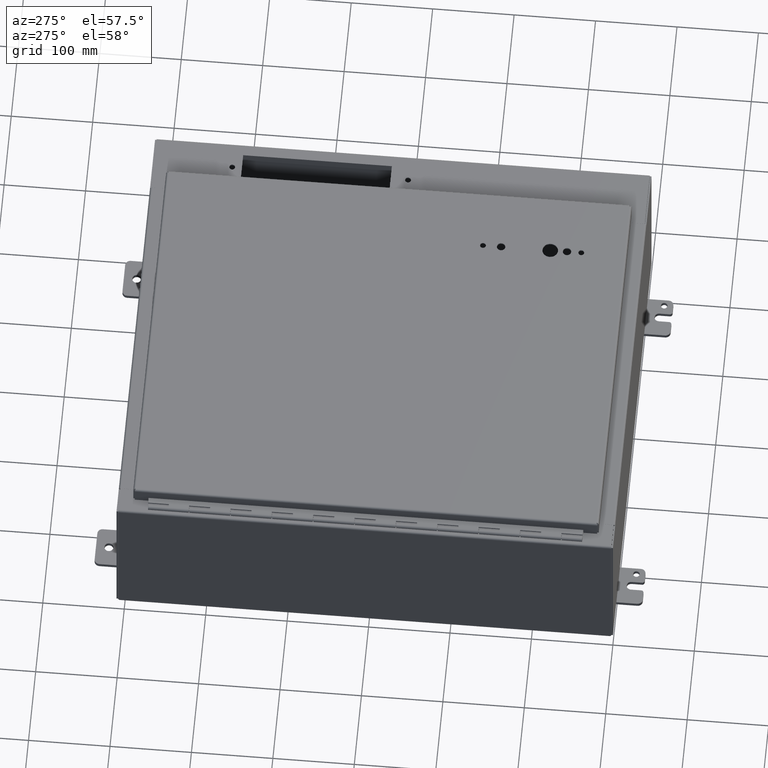
[diagram: clean part render]
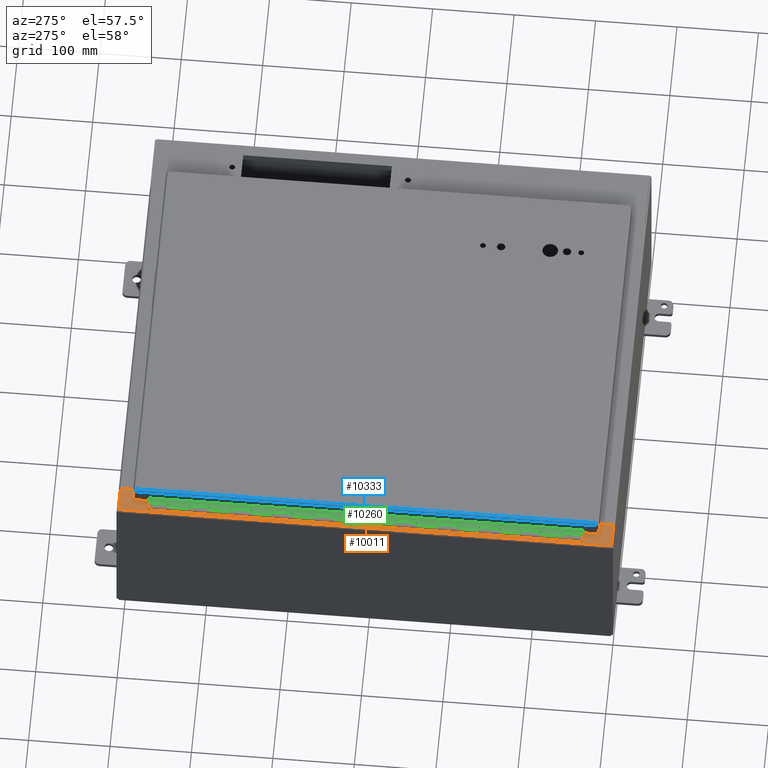
[diagram: same view with three faces highlighted in distinct colors, each labeled with its STEP entity id]
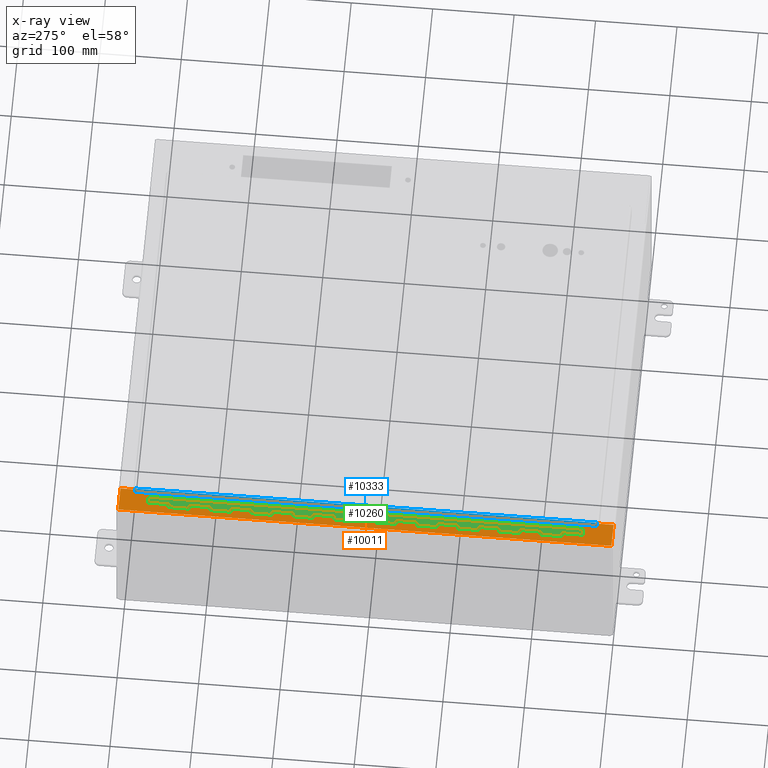
[diagram: x-ray of the same camera — body ghosted, the three highlighted faces saturated]
A machine part, auxiliary view with three faces highlighted in distinct colors.
The next image is the same camera in x-ray (body ghosted, the three faces saturated) — at least one of them is partly hidden behind the body in this view.
Their STEP definitions:

[orange] entity #10011 — the highlighted planar face has unit normal (0, -0, 1).
#246=FACE_BOUND($,#1572,.T.);
#247=FACE_BOUND($,#1573,.T.);
#339=CIRCLE($,#10459,0.0625);
#341=CIRCLE($,#10463,0.0625);
#1572=EDGE_LOOP($,(#6864,#6865,#6866,#6867));
#1573=EDGE_LOOP($,(#6868,#6869,#6870,#6871,#6872,#6873,#6874,#6875,#6876,
#6877,#6878,#6879));
#2074=LINE($,#14206,#3039);
#2078=LINE($,#14218,#3043);
#2224=LINE($,#14740,#3189);
#2235=LINE($,#14770,#3200);
#2275=LINE($,#14853,#3240);
#2277=LINE($,#14859,#3242);
#2281=LINE($,#14866,#3246);
#2283=LINE($,#14870,#3248);
#2286=LINE($,#14876,#3251);
#2289=LINE($,#14882,#3254);
#2290=LINE($,#14884,#3255);
#2291=LINE($,#14886,#3256);
#2292=LINE($,#14888,#3257);
#2293=LINE($,#14889,#3258);
#3039=VECTOR($,#11387,0.0629999999999999);
#3043=VECTOR($,#11399,0.0630000000000001);
#3189=VECTOR($,#11917,0.000199999999999981);
#3200=VECTOR($,#11942,0.000199999999999981);
#3240=VECTOR($,#12032,21.374);
#3242=VECTOR($,#12038,0.105450000000007);
#3246=VECTOR($,#12044,0.000199999999999981);
#3248=VECTOR($,#12048,0.00020000000000138);
#3251=VECTOR($,#12053,0.105450000000007);
#3254=VECTOR($,#12058,1.2338);
#3255=VECTOR($,#12059,1.20725000000001);
#3256=VECTOR($,#12060,23.842);
#3257=VECTOR($,#12061,1.20725000000001);
#3258=VECTOR($,#12062,1.2338);
#4004=VERTEX_POINT($,#14203);
#4005=VERTEX_POINT($,#14205);
#4007=VERTEX_POINT($,#14211);
#4009=VERTEX_POINT($,#14217);
#4198=VERTEX_POINT($,#14737);
#4199=VERTEX_POINT($,#14739);
#4210=VERTEX_POINT($,#14767);
#4211=VERTEX_POINT($,#14769);
#4230=VERTEX_POINT($,#14857);
#4231=VERTEX_POINT($,#14858);
#4234=VERTEX_POINT($,#14869);
#4236=VERTEX_POINT($,#14875);
#4238=VERTEX_POINT($,#14881);
#4239=VERTEX_POINT($,#14883);
#4240=VERTEX_POINT($,#14885);
#4241=VERTEX_POINT($,#14887);
#4942=EDGE_CURVE($,#4005,#4004,#2074,.T.);
#4945=EDGE_CURVE($,#4007,#4005,#339,.T.);
#4948=EDGE_CURVE($,#4009,#4007,#2078,.T.);
#4951=EDGE_CURVE($,#4004,#4009,#341,.T.);
#5182=EDGE_CURVE($,#4199,#4198,#2224,.T.);
#5197=EDGE_CURVE($,#4211,#4210,#2235,.T.);
#5239=EDGE_CURVE($,#4198,#4211,#2275,.T.);
#5241=EDGE_CURVE($,#4230,#4231,#2277,.T.);
#5245=EDGE_CURVE($,#4231,#4199,#2281,.T.);
#5247=EDGE_CURVE($,#4210,#4234,#2283,.T.);
#5250=EDGE_CURVE($,#4234,#4236,#2286,.T.);
#5253=EDGE_CURVE($,#4238,#4236,#2289,.T.);
#5254=EDGE_CURVE($,#4238,#4239,#2290,.T.);
#5255=EDGE_CURVE($,#4240,#4239,#2291,.T.);
#5256=EDGE_CURVE($,#4240,#4241,#2292,.T.);
#5257=EDGE_CURVE($,#4230,#4241,#2293,.T.);
#6864=ORIENTED_EDGE($,*,*,#4942,.T.);
#6865=ORIENTED_EDGE($,*,*,#4951,.T.);
#6866=ORIENTED_EDGE($,*,*,#4948,.T.);
#6867=ORIENTED_EDGE($,*,*,#4945,.T.);
#6868=ORIENTED_EDGE($,*,*,#5241,.T.);
#6869=ORIENTED_EDGE($,*,*,#5245,.T.);
#6870=ORIENTED_EDGE($,*,*,#5182,.T.);
#6871=ORIENTED_EDGE($,*,*,#5239,.T.);
#6872=ORIENTED_EDGE($,*,*,#5197,.T.);
#6873=ORIENTED_EDGE($,*,*,#5247,.T.);
#6874=ORIENTED_EDGE($,*,*,#5250,.T.);
#6875=ORIENTED_EDGE($,*,*,#5253,.F.);
#6876=ORIENTED_EDGE($,*,*,#5254,.T.);
#6877=ORIENTED_EDGE($,*,*,#5255,.F.);
#6878=ORIENTED_EDGE($,*,*,#5256,.T.);
#6879=ORIENTED_EDGE($,*,*,#5257,.F.);
#9168=PLANE($,#10684);
#10011=ADVANCED_FACE($,(#246,#247),#9168,.T.);
#10459=AXIS2_PLACEMENT_3D($,#14212,#11393,#11394);
#10463=AXIS2_PLACEMENT_3D($,#14222,#11405,#11406);
#10684=AXIS2_PLACEMENT_3D($,#14880,#12056,#12057);
#11387=DIRECTION($,(-1.,-3.02470474793707E-015,-1.0646774268193E-030));
#11393=DIRECTION('center_axis',(0.,3.51993835942313E-016,-1.));
#11394=DIRECTION('ref_axis',(3.01360390529615E-015,-1.,0.));
#11399=DIRECTION($,(1.,3.02470474793707E-015,1.0646774268193E-030));
#11405=DIRECTION('center_axis',(0.,3.51993835942313E-016,-1.));
#11406=DIRECTION('ref_axis',(-3.01360390529615E-015,1.,0.));
#11917=DIRECTION($,(1.,0.,0.));
#11942=DIRECTION($,(-1.,0.,0.));
#12032=DIRECTION($,(-3.10838136080822E-016,1.,3.51993835942313E-016));
#12038=DIRECTION($,(-1.,0.,0.));
#12044=DIRECTION($,(0.,1.,3.51993835942313E-016));
#12048=DIRECTION($,(0.,1.,3.51993835942313E-016));
#12053=DIRECTION($,(1.,0.,0.));
#12056=DIRECTION('center_axis',(0.,-3.51993835942313E-016,1.));
#12057=DIRECTION('ref_axis',(1.,0.,0.));
#12058=DIRECTION($,(3.06161305220657E-016,-1.,-3.51993835942313E-016));
#12059=DIRECTION($,(-1.,0.,0.));
#12060=DIRECTION($,(3.51993835942313E-016,1.,3.06161699786838E-016));
#12061=DIRECTION($,(1.,0.,0.));
#12062=DIRECTION($,(3.06161305220657E-016,-1.,-3.51993835942313E-016));
#14203=CARTESIAN_POINT('',(0.868499999999997,2.4375,8.));
#14205=CARTESIAN_POINT('',(0.931499999999997,2.4375,8.));
#14206=CARTESIAN_POINT($,(0.471250000000026,2.4375,8.));
#14211=CARTESIAN_POINT('',(0.931499999999997,2.5625,8.));
#14212=CARTESIAN_POINT('Origin',(0.931499999999997,2.5,8.00000000000001));
#14217=CARTESIAN_POINT('',(0.868499999999997,2.5625,8.));
#14218=CARTESIAN_POINT($,(0.502750000000026,2.5625,8.));
#14222=CARTESIAN_POINT('Origin',(0.868499999999997,2.5,8.00000000000001));
#14737=CARTESIAN_POINT('',(1.20724999999999,1.313,8.));
#14739=CARTESIAN_POINT('',(1.20704999999999,1.313,8.));
#14740=CARTESIAN_POINT($,(0.64052499999999,1.313,8.));
#14767=CARTESIAN_POINT('',(1.20704999999998,22.687,8.00000000000001));
#14769=CARTESIAN_POINT('',(1.20724999999998,22.687,8.00000000000001));
#14770=CARTESIAN_POINT($,(0.69324999999999,22.687,8.00000000000001));
#14853=CARTESIAN_POINT($,(1.20724999999998,23.304,8.00000000000001));
#14857=CARTESIAN_POINT('',(1.3125,1.3128,8.));
#14858=CARTESIAN_POINT('',(1.20704999999999,1.3128,8.));
#14859=CARTESIAN_POINT($,(0.693249999999994,1.3128,8.));
#14866=CARTESIAN_POINT($,(1.20704999999999,12.6169,8.));
#14869=CARTESIAN_POINT('',(1.20704999999998,22.6872,8.00000000000001));
#14870=CARTESIAN_POINT($,(1.20704999999998,23.304,8.00000000000001));
#14875=CARTESIAN_POINT('',(1.31249999999999,22.6872,8.00000000000001));
#14876=CARTESIAN_POINT($,(0.640524999999987,22.6872,8.00000000000001));
#14880=CARTESIAN_POINT('Origin',(0.0739999999999904,23.921,8.00000000000001));
#14881=CARTESIAN_POINT('',(1.31249999999999,23.921,8.00000000000001));
#14882=CARTESIAN_POINT($,(1.31249999999999,23.921,8.00000000000001));
#14883=CARTESIAN_POINT('',(0.105249999999973,23.921,8.00000000000001));
#14884=CARTESIAN_POINT($,(1.31249999999999,23.921,8.00000000000001));
#14885=CARTESIAN_POINT('',(0.105249999999965,0.0790000000000052,8.00000000000001));
#14886=CARTESIAN_POINT($,(0.105249999999973,23.921,8.00000000000001));
#14887=CARTESIAN_POINT('',(1.3125,0.0789999999999997,8.));
#14888=CARTESIAN_POINT($,(1.3125,0.0789999999999997,8.));
#14889=CARTESIAN_POINT($,(1.31249999999999,23.921,8.00000000000001));

[blue] entity #10333 — the highlighted cylindrical surface (edge-blend (fillet) strip) has radius 2.6733 mm, axis along (0, -1, 0).
#204=B_SPLINE_CURVE_WITH_KNOTS($,3,(#17119,#17120,#17121,#17122,#17123,
#17124,#17125),.UNSPECIFIED.,.F.,.F.,(4,3,4),(0.,0.897597901025652,1.57079632679489),
 .UNSPECIFIED.);
#205=B_SPLINE_CURVE_WITH_KNOTS($,3,(#17127,#17128,#17129,#17130,#17131,
#17132,#17133),.UNSPECIFIED.,.F.,.F.,(4,3,4),(0.,0.673198425769234,1.57079632679487),
 .UNSPECIFIED.);
#847=CYLINDRICAL_SURFACE($,#11209,0.10525);
#1314=FACE_OUTER_BOUND($,#1941,.T.);
#1941=EDGE_LOOP($,(#8636,#8637,#8638,#8639));
#2914=LINE($,#17117,#3879);
#2915=LINE($,#17126,#3880);
#3879=VECTOR($,#13733,22.3505857864376);
#3880=VECTOR($,#13734,22.2895);
#4794=VERTEX_POINT($,#17018);
#4802=VERTEX_POINT($,#17115);
#4803=VERTEX_POINT($,#17116);
#4804=VERTEX_POINT($,#17118);
#6111=EDGE_CURVE($,#4802,#4803,#2914,.T.);
#6112=EDGE_CURVE($,#4804,#4802,#204,.T.);
#6113=EDGE_CURVE($,#4794,#4804,#2915,.T.);
#6114=EDGE_CURVE($,#4803,#4794,#205,.T.);
#8636=ORIENTED_EDGE($,*,*,#6111,.F.);
#8637=ORIENTED_EDGE($,*,*,#6112,.F.);
#8638=ORIENTED_EDGE($,*,*,#6113,.F.);
#8639=ORIENTED_EDGE($,*,*,#6114,.F.);
#10333=ADVANCED_FACE($,(#1314),#847,.T.);
#11209=AXIS2_PLACEMENT_3D($,#17114,#13731,#13732);
#13731=DIRECTION('center_axis',(3.06161699786838E-016,-1.,0.));
#13732=DIRECTION('ref_axis',(-1.,0.,6.28130370039669E-015));
#13733=DIRECTION($,(-3.07228453752467E-016,1.,6.53198414742357E-035));
#13734=DIRECTION($,(3.05915008958747E-016,-1.,0.));
#17018=CARTESIAN_POINT('',(0.105249999999993,22.39475,0.074));
#17114=CARTESIAN_POINT('Origin',(0.10525,0.0747071067811843,-0.03125));
#17115=CARTESIAN_POINT('',(-3.27821759239712E-017,0.0747071067811846,-0.0312499999999997));
#17116=CARTESIAN_POINT('',(-6.8951843360086E-015,22.4252928932188,-0.0312499999999987));
#17117=CARTESIAN_POINT($,(-3.46398325596629E-015,11.25,-0.03125));
#17118=CARTESIAN_POINT('',(0.10525,0.10525,0.074));
#17119=CARTESIAN_POINT('Ctrl Pts',(0.10525,0.10525,0.074));
#17120=CARTESIAN_POINT('Ctrl Pts',(0.0737592736390166,0.0994323060535587,
0.074));
#17121=CARTESIAN_POINT('Ctrl Pts',(0.0426082590819405,0.0936146121071177,
0.0588938539011335));
#17122=CARTESIAN_POINT('Ctrl Pts',(0.0229737432385787,0.0877969181606767,
0.0343965424526412));
#17123=CARTESIAN_POINT('Ctrl Pts',(0.00824785635605726,0.0834336477008459,
0.0160235588662719));
#17124=CARTESIAN_POINT('Ctrl Pts',(1.11781223800762E-016,0.079070377241015,
-0.00763195522926186));
#17125=CARTESIAN_POINT('Ctrl Pts',(-4.37095678986278E-017,0.0747071067811843,
-0.0312499999999993));
#17126=CARTESIAN_POINT($,(0.105249999999994,16.822375,0.074));
#17127=CARTESIAN_POINT('Ctrl Pts',(-6.88425694403394E-015,22.4252928932188,
-0.0312499999999974));
#17128=CARTESIAN_POINT('Ctrl Pts',(-6.30510516937712E-015,22.420929622759,
-0.00763195522926015));
#17129=CARTESIAN_POINT('Ctrl Pts',(0.00825760593300805,22.4165663522991,
0.0160154332638621));
#17130=CARTESIAN_POINT('Ctrl Pts',(0.0229848856122377,22.4122030818393,
0.0343872560498866));
#17131=CARTESIAN_POINT('Ctrl Pts',(0.0426212585178772,22.4063853878929,
0.0588830197645857));
#17132=CARTESIAN_POINT('Ctrl Pts',(0.0737592736390103,22.4005676939464,
0.0739999999999999));
#17133=CARTESIAN_POINT('Ctrl Pts',(0.105249999999993,22.39475,0.074));

[green] entity #10260 — the highlighted planar face has unit normal (0.0872, 0, 0.9962).
#1242=FACE_OUTER_BOUND($,#1861,.T.);
#1861=EDGE_LOOP($,(#8267,#8268,#8269,#8270,#8271,#8272,#8273,#8274,#8275,
#8276,#8277,#8278,#8279,#8280,#8281,#8282,#8283,#8284,#8285,#8286,#8287,
#8288,#8289,#8290,#8291,#8292,#8293,#8294,#8295,#8296,#8297,#8298,#8299,
#8300,#8301,#8302,#8303,#8304,#8305,#8306,#8307,#8308,#8309,#8310));
#2704=LINE($,#16429,#3669);
#2710=LINE($,#16442,#3675);
#2711=LINE($,#16448,#3676);
#2716=LINE($,#16460,#3681);
#2720=LINE($,#16471,#3685);
#2721=LINE($,#16477,#3686);
#2726=LINE($,#16489,#3691);
#2730=LINE($,#16500,#3695);
#2731=LINE($,#16506,#3696);
#2736=LINE($,#16518,#3701);
#2740=LINE($,#16529,#3705);
#2741=LINE($,#16535,#3706);
#2746=LINE($,#16547,#3711);
#2750=LINE($,#16558,#3715);
#2751=LINE($,#16564,#3716);
#2756=LINE($,#16576,#3721);
#2760=LINE($,#16587,#3725);
#2761=LINE($,#16593,#3726);
#2766=LINE($,#16605,#3731);
#2770=LINE($,#16616,#3735);
#2771=LINE($,#16622,#3736);
#2776=LINE($,#16634,#3741);
#2780=LINE($,#16645,#3745);
#2781=LINE($,#16651,#3746);
#2786=LINE($,#16663,#3751);
#2790=LINE($,#16674,#3755);
#2791=LINE($,#16680,#3756);
#2796=LINE($,#16692,#3761);
#2800=LINE($,#16703,#3765);
#2801=LINE($,#16705,#3766);
#2802=LINE($,#16706,#3767);
#2803=LINE($,#16707,#3768);
#2804=LINE($,#16708,#3769);
#2805=LINE($,#16709,#3770);
#2806=LINE($,#16710,#3771);
#2807=LINE($,#16711,#3772);
#2808=LINE($,#16712,#3773);
#2809=LINE($,#16713,#3774);
#2810=LINE($,#16715,#3775);
#2811=LINE($,#16717,#3776);
#2812=LINE($,#16719,#3777);
#2813=LINE($,#16721,#3778);
#2814=LINE($,#16723,#3779);
#2815=LINE($,#16724,#3780);
#3669=VECTOR($,#13205,0.18);
#3675=VECTOR($,#13215,1.);
#3676=VECTOR($,#13220,0.18);
#3681=VECTOR($,#13229,1.01999999999999);
#3685=VECTOR($,#13239,0.18);
#3686=VECTOR($,#13244,0.18);
#3691=VECTOR($,#13253,1.01999999999999);
#3695=VECTOR($,#13263,0.18);
#3696=VECTOR($,#13268,0.18);
#3701=VECTOR($,#13277,1.01999999999999);
#3705=VECTOR($,#13287,0.18);
#3706=VECTOR($,#13292,0.18);
#3711=VECTOR($,#13301,1.01999999999999);
#3715=VECTOR($,#13311,0.18);
#3716=VECTOR($,#13316,0.18);
#3721=VECTOR($,#13325,1.01999999999999);
#3725=VECTOR($,#13335,0.18);
#3726=VECTOR($,#13340,0.18);
#3731=VECTOR($,#13349,1.01999999999999);
#3735=VECTOR($,#13359,0.18);
#3736=VECTOR($,#13364,0.18);
#3741=VECTOR($,#13373,1.01999999999999);
#3745=VECTOR($,#13383,0.18);
#3746=VECTOR($,#13388,0.18);
#3751=VECTOR($,#13397,1.01999999999999);
#3755=VECTOR($,#13407,0.18);
#3756=VECTOR($,#13412,0.18);
#3761=VECTOR($,#13421,1.01999999999999);
#3765=VECTOR($,#13431,0.18);
#3766=VECTOR($,#13434,0.979999999999999);
#3767=VECTOR($,#13435,0.979999999999998);
#3768=VECTOR($,#13436,0.979999999999999);
#3769=VECTOR($,#13437,0.980000000000001);
#3770=VECTOR($,#13438,0.979999999999999);
#3771=VECTOR($,#13439,0.979999999999999);
#3772=VECTOR($,#13440,0.980000000000001);
#3773=VECTOR($,#13441,0.979999999999999);
#3774=VECTOR($,#13442,0.979999999999996);
#3775=VECTOR($,#13443,0.980000000000001);
#3776=VECTOR($,#13444,0.18);
#3777=VECTOR($,#13445,1.01999999999999);
#3778=VECTOR($,#13446,0.331005076730884);
#3779=VECTOR($,#13447,21.);
#3780=VECTOR($,#13448,0.331005076730884);
#4618=VERTEX_POINT($,#16425);
#4620=VERTEX_POINT($,#16428);
#4625=VERTEX_POINT($,#16439);
#4626=VERTEX_POINT($,#16444);
#4628=VERTEX_POINT($,#16447);
#4633=VERTEX_POINT($,#16459);
#4635=VERTEX_POINT($,#16464);
#4638=VERTEX_POINT($,#16473);
#4640=VERTEX_POINT($,#16476);
#4645=VERTEX_POINT($,#16488);
#4647=VERTEX_POINT($,#16493);
#4650=VERTEX_POINT($,#16502);
#4652=VERTEX_POINT($,#16505);
#4657=VERTEX_POINT($,#16517);
#4659=VERTEX_POINT($,#16522);
#4662=VERTEX_POINT($,#16531);
#4664=VERTEX_POINT($,#16534);
#4669=VERTEX_POINT($,#16546);
#4671=VERTEX_POINT($,#16551);
#4674=VERTEX_POINT($,#16560);
#4676=VERTEX_POINT($,#16563);
#4681=VERTEX_POINT($,#16575);
#4683=VERTEX_POINT($,#16580);
#4686=VERTEX_POINT($,#16589);
#4688=VERTEX_POINT($,#16592);
#4693=VERTEX_POINT($,#16604);
#4695=VERTEX_POINT($,#16609);
#4698=VERTEX_POINT($,#16618);
#4700=VERTEX_POINT($,#16621);
#4705=VERTEX_POINT($,#16633);
#4707=VERTEX_POINT($,#16638);
#4710=VERTEX_POINT($,#16647);
#4712=VERTEX_POINT($,#16650);
#4717=VERTEX_POINT($,#16662);
#4719=VERTEX_POINT($,#16667);
#4722=VERTEX_POINT($,#16676);
#4724=VERTEX_POINT($,#16679);
#4729=VERTEX_POINT($,#16691);
#4731=VERTEX_POINT($,#16696);
#4734=VERTEX_POINT($,#16714);
#4735=VERTEX_POINT($,#16716);
#4736=VERTEX_POINT($,#16718);
#4737=VERTEX_POINT($,#16720);
#4738=VERTEX_POINT($,#16722);
#5838=EDGE_CURVE($,#4620,#4618,#2704,.T.);
#5845=EDGE_CURVE($,#4625,#4620,#2710,.T.);
#5847=EDGE_CURVE($,#4628,#4626,#2711,.T.);
#5853=EDGE_CURVE($,#4633,#4628,#2716,.T.);
#5859=EDGE_CURVE($,#4635,#4633,#2720,.T.);
#5861=EDGE_CURVE($,#4640,#4638,#2721,.T.);
#5867=EDGE_CURVE($,#4645,#4640,#2726,.T.);
#5873=EDGE_CURVE($,#4647,#4645,#2730,.T.);
#5875=EDGE_CURVE($,#4652,#4650,#2731,.T.);
#5881=EDGE_CURVE($,#4657,#4652,#2736,.T.);
#5887=EDGE_CURVE($,#4659,#4657,#2740,.T.);
#5889=EDGE_CURVE($,#4664,#4662,#2741,.T.);
#5895=EDGE_CURVE($,#4669,#4664,#2746,.T.);
#5901=EDGE_CURVE($,#4671,#4669,#2750,.T.);
#5903=EDGE_CURVE($,#4676,#4674,#2751,.T.);
#5909=EDGE_CURVE($,#4681,#4676,#2756,.T.);
#5915=EDGE_CURVE($,#4683,#4681,#2760,.T.);
#5917=EDGE_CURVE($,#4688,#4686,#2761,.T.);
#5923=EDGE_CURVE($,#4693,#4688,#2766,.T.);
#5929=EDGE_CURVE($,#4695,#4693,#2770,.T.);
#5931=EDGE_CURVE($,#4700,#4698,#2771,.T.);
#5937=EDGE_CURVE($,#4705,#4700,#2776,.T.);
#5943=EDGE_CURVE($,#4707,#4705,#2780,.T.);
#5945=EDGE_CURVE($,#4712,#4710,#2781,.T.);
#5951=EDGE_CURVE($,#4717,#4712,#2786,.T.);
#5957=EDGE_CURVE($,#4719,#4717,#2790,.T.);
#5959=EDGE_CURVE($,#4724,#4722,#2791,.T.);
#5965=EDGE_CURVE($,#4729,#4724,#2796,.T.);
#5971=EDGE_CURVE($,#4731,#4729,#2800,.T.);
#5972=EDGE_CURVE($,#4618,#4635,#2801,.T.);
#5973=EDGE_CURVE($,#4626,#4647,#2802,.T.);
#5974=EDGE_CURVE($,#4638,#4659,#2803,.T.);
#5975=EDGE_CURVE($,#4650,#4671,#2804,.T.);
#5976=EDGE_CURVE($,#4662,#4683,#2805,.T.);
#5977=EDGE_CURVE($,#4674,#4695,#2806,.T.);
#5978=EDGE_CURVE($,#4686,#4707,#2807,.T.);
#5979=EDGE_CURVE($,#4698,#4719,#2808,.T.);
#5980=EDGE_CURVE($,#4710,#4731,#2809,.T.);
#5981=EDGE_CURVE($,#4722,#4734,#2810,.T.);
#5982=EDGE_CURVE($,#4734,#4735,#2811,.T.);
#5983=EDGE_CURVE($,#4735,#4736,#2812,.T.);
#5984=EDGE_CURVE($,#4736,#4737,#2813,.T.);
#5985=EDGE_CURVE($,#4738,#4737,#2814,.T.);
#5986=EDGE_CURVE($,#4738,#4625,#2815,.T.);
#8267=ORIENTED_EDGE($,*,*,#5845,.T.);
#8268=ORIENTED_EDGE($,*,*,#5838,.T.);
#8269=ORIENTED_EDGE($,*,*,#5972,.T.);
#8270=ORIENTED_EDGE($,*,*,#5859,.T.);
#8271=ORIENTED_EDGE($,*,*,#5853,.T.);
#8272=ORIENTED_EDGE($,*,*,#5847,.T.);
#8273=ORIENTED_EDGE($,*,*,#5973,.T.);
#8274=ORIENTED_EDGE($,*,*,#5873,.T.);
#8275=ORIENTED_EDGE($,*,*,#5867,.T.);
#8276=ORIENTED_EDGE($,*,*,#5861,.T.);
#8277=ORIENTED_EDGE($,*,*,#5974,.T.);
#8278=ORIENTED_EDGE($,*,*,#5887,.T.);
#8279=ORIENTED_EDGE($,*,*,#5881,.T.);
#8280=ORIENTED_EDGE($,*,*,#5875,.T.);
#8281=ORIENTED_EDGE($,*,*,#5975,.T.);
#8282=ORIENTED_EDGE($,*,*,#5901,.T.);
#8283=ORIENTED_EDGE($,*,*,#5895,.T.);
#8284=ORIENTED_EDGE($,*,*,#5889,.T.);
#8285=ORIENTED_EDGE($,*,*,#5976,.T.);
#8286=ORIENTED_EDGE($,*,*,#5915,.T.);
#8287=ORIENTED_EDGE($,*,*,#5909,.T.);
#8288=ORIENTED_EDGE($,*,*,#5903,.T.);
#8289=ORIENTED_EDGE($,*,*,#5977,.T.);
#8290=ORIENTED_EDGE($,*,*,#5929,.T.);
#8291=ORIENTED_EDGE($,*,*,#5923,.T.);
#8292=ORIENTED_EDGE($,*,*,#5917,.T.);
#8293=ORIENTED_EDGE($,*,*,#5978,.T.);
#8294=ORIENTED_EDGE($,*,*,#5943,.T.);
#8295=ORIENTED_EDGE($,*,*,#5937,.T.);
#8296=ORIENTED_EDGE($,*,*,#5931,.T.);
#8297=ORIENTED_EDGE($,*,*,#5979,.T.);
#8298=ORIENTED_EDGE($,*,*,#5957,.T.);
#8299=ORIENTED_EDGE($,*,*,#5951,.T.);
#8300=ORIENTED_EDGE($,*,*,#5945,.T.);
#8301=ORIENTED_EDGE($,*,*,#5980,.T.);
#8302=ORIENTED_EDGE($,*,*,#5971,.T.);
#8303=ORIENTED_EDGE($,*,*,#5965,.T.);
#8304=ORIENTED_EDGE($,*,*,#5959,.T.);
#8305=ORIENTED_EDGE($,*,*,#5981,.T.);
#8306=ORIENTED_EDGE($,*,*,#5982,.T.);
#8307=ORIENTED_EDGE($,*,*,#5983,.T.);
#8308=ORIENTED_EDGE($,*,*,#5984,.T.);
#8309=ORIENTED_EDGE($,*,*,#5985,.F.);
#8310=ORIENTED_EDGE($,*,*,#5986,.T.);
#9330=PLANE($,#11116);
#10260=ADVANCED_FACE($,(#1242),#9330,.T.);
#11116=AXIS2_PLACEMENT_3D($,#16704,#13432,#13433);
#13205=DIRECTION($,(1.,1.60772500402571E-016,-2.81632773301609E-030));
#13215=DIRECTION($,(0.,0.,1.));
#13220=DIRECTION($,(1.,1.60772500402571E-016,-2.81632773301609E-030));
#13229=DIRECTION($,(0.,0.,1.));
#13239=DIRECTION($,(-1.,-1.60772500402571E-016,1.68979663980966E-030));
#13244=DIRECTION($,(1.,1.60772500402571E-016,-2.81632773301609E-030));
#13253=DIRECTION($,(0.,0.,1.));
#13263=DIRECTION($,(-1.,-1.60772500402571E-016,1.68979663980966E-030));
#13268=DIRECTION($,(1.,1.60772500402571E-016,-2.81632773301609E-030));
#13277=DIRECTION($,(0.,0.,1.));
#13287=DIRECTION($,(-1.,-1.60772500402571E-016,1.68979663980966E-030));
#13292=DIRECTION($,(1.,1.60772500402571E-016,-2.81632773301609E-030));
#13301=DIRECTION($,(0.,0.,1.));
#13311=DIRECTION($,(-1.,-1.60772500402571E-016,1.68979663980966E-030));
#13316=DIRECTION($,(1.,1.60772500402571E-016,-2.81632773301609E-030));
#13325=DIRECTION($,(0.,0.,1.));
#13335=DIRECTION($,(-1.,-1.60772500402571E-016,1.68979663980966E-030));
#13340=DIRECTION($,(1.,1.60772500402571E-016,-2.81632773301609E-030));
#13349=DIRECTION($,(0.,0.,1.));
#13359=DIRECTION($,(-1.,-1.60772500402571E-016,1.68979663980966E-030));
#13364=DIRECTION($,(1.,1.60772500402571E-016,-2.81632773301609E-030));
#13373=DIRECTION($,(0.,0.,1.));
#13383=DIRECTION($,(-1.,-1.60772500402571E-016,1.68979663980966E-030));
#13388=DIRECTION($,(1.,1.60772500402571E-016,-2.81632773301609E-030));
#13397=DIRECTION($,(0.,0.,1.));
#13407=DIRECTION($,(-1.,-1.60772500402571E-016,1.68979663980966E-030));
#13412=DIRECTION($,(1.,1.60772500402571E-016,-2.81632773301609E-030));
#13421=DIRECTION($,(0.,0.,1.));
#13431=DIRECTION($,(-1.,-1.60772500402571E-016,1.68979663980966E-030));
#13432=DIRECTION('center_axis',(1.60772500402571E-016,-1.,0.));
#13433=DIRECTION('ref_axis',(0.,0.,-1.));
#13434=DIRECTION($,(0.,0.,1.));
#13435=DIRECTION($,(0.,0.,1.));
#13436=DIRECTION($,(0.,0.,1.));
#13437=DIRECTION($,(0.,0.,1.));
#13438=DIRECTION($,(0.,0.,1.));
#13439=DIRECTION($,(0.,0.,1.));
#13440=DIRECTION($,(0.,0.,1.));
#13441=DIRECTION($,(0.,0.,1.));
#13442=DIRECTION($,(0.,0.,1.));
#13443=DIRECTION($,(0.,0.,1.));
#13444=DIRECTION($,(-1.,-1.60772500402571E-016,1.68979663980966E-030));
#13445=DIRECTION($,(0.,0.,1.));
#13446=DIRECTION($,(-1.,-1.60772500402571E-016,0.));
#13447=DIRECTION($,(0.,0.,1.));
#13448=DIRECTION($,(1.,1.60772500402571E-016,0.));
#16425=CARTESIAN_POINT('',(0.,-0.125,1.));
#16428=CARTESIAN_POINT('',(-0.18,-0.125,1.));
#16429=CARTESIAN_POINT($,(2.97852717297736E-017,-0.125,1.00000000000001));
#16439=CARTESIAN_POINT('',(-0.18,-0.125,0.));
#16442=CARTESIAN_POINT($,(-0.18,-0.125,0.500000000000001));
#16444=CARTESIAN_POINT('',(0.,-0.125,3.));
#16447=CARTESIAN_POINT('',(-0.18,-0.125,3.));
#16448=CARTESIAN_POINT($,(2.90191013098894E-017,-0.125,3.00000000000001));
#16459=CARTESIAN_POINT('',(-0.18,-0.125,1.98000000000001));
#16460=CARTESIAN_POINT($,(-0.18,-0.125,1.5));
#16464=CARTESIAN_POINT('',(0.,-0.125,1.98));
#16471=CARTESIAN_POINT($,(2.90191013098868E-017,-0.125,1.98000000000001));
#16473=CARTESIAN_POINT('',(0.,-0.125,5.));
#16476=CARTESIAN_POINT('',(-0.18,-0.125,5.));
#16477=CARTESIAN_POINT($,(2.82529308900052E-017,-0.125,5.00000000000001));
#16488=CARTESIAN_POINT('',(-0.18,-0.125,3.98000000000001));
#16489=CARTESIAN_POINT($,(-0.18,-0.125,2.5));
#16493=CARTESIAN_POINT('',(0.,-0.125,3.98));
#16500=CARTESIAN_POINT($,(2.82529308900016E-017,-0.125,3.98000000000001));
#16502=CARTESIAN_POINT('',(0.,-0.125,7.));
#16505=CARTESIAN_POINT('',(-0.18,-0.125,7.));
#16506=CARTESIAN_POINT($,(2.74867604701211E-017,-0.125,7.00000000000001));
#16517=CARTESIAN_POINT('',(-0.18,-0.125,5.98000000000001));
#16518=CARTESIAN_POINT($,(-0.18,-0.125,3.5));
#16522=CARTESIAN_POINT('',(0.,-0.125,5.98));
#16529=CARTESIAN_POINT($,(2.74867604701163E-017,-0.125,5.98000000000001));
#16531=CARTESIAN_POINT('',(0.,-0.125,9.));
#16534=CARTESIAN_POINT('',(-0.18,-0.125,9.));
#16535=CARTESIAN_POINT($,(2.67205900502369E-017,-0.125,9.00000000000001));
#16546=CARTESIAN_POINT('',(-0.18,-0.125,7.98000000000001));
#16547=CARTESIAN_POINT($,(-0.18,-0.125,4.5));
#16551=CARTESIAN_POINT('',(0.,-0.125,7.98));
#16558=CARTESIAN_POINT($,(2.6720590050231E-017,-0.125,7.98000000000001));
#16560=CARTESIAN_POINT('',(0.,-0.125,11.));
#16563=CARTESIAN_POINT('',(-0.18,-0.125,11.));
#16564=CARTESIAN_POINT($,(2.59544196303527E-017,-0.125,11.));
#16575=CARTESIAN_POINT('',(-0.18,-0.125,9.98000000000001));
#16576=CARTESIAN_POINT($,(-0.18,-0.125,5.5));
#16580=CARTESIAN_POINT('',(0.,-0.125,9.98));
#16587=CARTESIAN_POINT($,(2.59544196303457E-017,-0.125,9.98000000000001));
#16589=CARTESIAN_POINT('',(0.,-0.125,13.));
#16592=CARTESIAN_POINT('',(-0.18,-0.125,13.));
#16593=CARTESIAN_POINT($,(2.51882492104686E-017,-0.125,13.));
#16604=CARTESIAN_POINT('',(-0.18,-0.125,11.98));
#16605=CARTESIAN_POINT($,(-0.18,-0.125,6.5));
#16609=CARTESIAN_POINT('',(0.,-0.125,11.98));
#16616=CARTESIAN_POINT($,(2.51882492104604E-017,-0.125,11.98));
#16618=CARTESIAN_POINT('',(0.,-0.125,15.));
#16621=CARTESIAN_POINT('',(-0.18,-0.125,15.));
#16622=CARTESIAN_POINT($,(2.44220787905844E-017,-0.125,15.));
#16633=CARTESIAN_POINT('',(-0.18,-0.125,13.98));
#16634=CARTESIAN_POINT($,(-0.18,-0.125,7.5));
#16638=CARTESIAN_POINT('',(0.,-0.125,13.98));
#16645=CARTESIAN_POINT($,(2.44220787905751E-017,-0.125,13.98));
#16647=CARTESIAN_POINT('',(0.,-0.125,17.));
#16650=CARTESIAN_POINT('',(-0.18,-0.125,17.));
#16651=CARTESIAN_POINT($,(2.36559083707002E-017,-0.125,17.));
#16662=CARTESIAN_POINT('',(-0.18,-0.125,15.98));
#16663=CARTESIAN_POINT($,(-0.18,-0.125,8.5));
#16667=CARTESIAN_POINT('',(0.,-0.125,15.98));
#16674=CARTESIAN_POINT($,(2.36559083706898E-017,-0.125,15.98));
#16676=CARTESIAN_POINT('',(0.,-0.125,19.));
#16679=CARTESIAN_POINT('',(-0.18,-0.125,19.));
#16680=CARTESIAN_POINT($,(2.28897379508161E-017,-0.125,19.));
#16691=CARTESIAN_POINT('',(-0.18,-0.125,17.98));
#16692=CARTESIAN_POINT($,(-0.18,-0.125,9.5));
#16696=CARTESIAN_POINT('',(0.,-0.125,17.98));
#16703=CARTESIAN_POINT($,(2.28897379508045E-017,-0.125,17.98));
#16704=CARTESIAN_POINT('Origin',(1.53080849893419E-017,-0.125,0.));
#16705=CARTESIAN_POINT($,(1.53080849893419E-017,-0.125,0.));
#16706=CARTESIAN_POINT($,(1.53080849893419E-017,-0.125,0.));
#16707=CARTESIAN_POINT($,(1.53080849893419E-017,-0.125,0.));
#16708=CARTESIAN_POINT($,(1.53080849893419E-017,-0.125,0.));
#16709=CARTESIAN_POINT($,(1.53080849893419E-017,-0.125,0.));
#16710=CARTESIAN_POINT($,(1.53080849893419E-017,-0.125,0.));
#16711=CARTESIAN_POINT($,(1.53080849893419E-017,-0.125,0.));
#16712=CARTESIAN_POINT($,(1.53080849893419E-017,-0.125,0.));
#16713=CARTESIAN_POINT($,(1.53080849893419E-017,-0.125,0.));
#16714=CARTESIAN_POINT('',(0.,-0.125,19.98));
#16715=CARTESIAN_POINT($,(1.53080849893419E-017,-0.125,0.));
#16716=CARTESIAN_POINT('',(-0.18,-0.125,19.98));
#16717=CARTESIAN_POINT($,(2.21235675309192E-017,-0.125,19.98));
#16718=CARTESIAN_POINT('',(-0.18,-0.125,21.));
#16719=CARTESIAN_POINT($,(-0.18,-0.125,10.5));
#16720=CARTESIAN_POINT('',(-0.511005076730884,-0.125,21.));
#16721=CARTESIAN_POINT($,(-0.543744331762962,-0.125,21.));
#16722=CARTESIAN_POINT('',(-0.511005076730884,-0.125,0.));
#16723=CARTESIAN_POINT($,(-0.511005076730884,-0.125,0.));
#16724=CARTESIAN_POINT($,(-0.543744331762962,-0.125,0.));